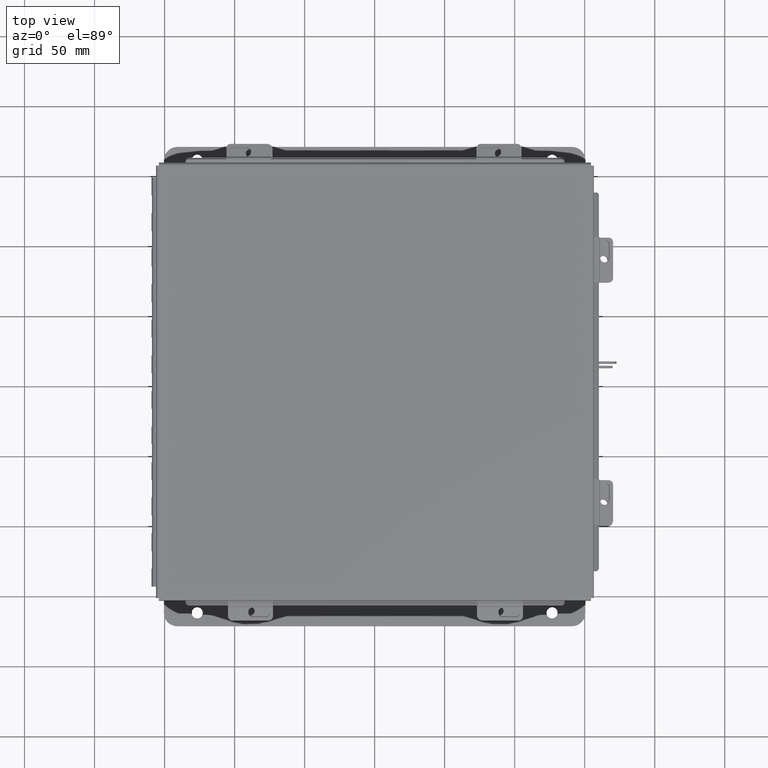
[diagram: clean part render]
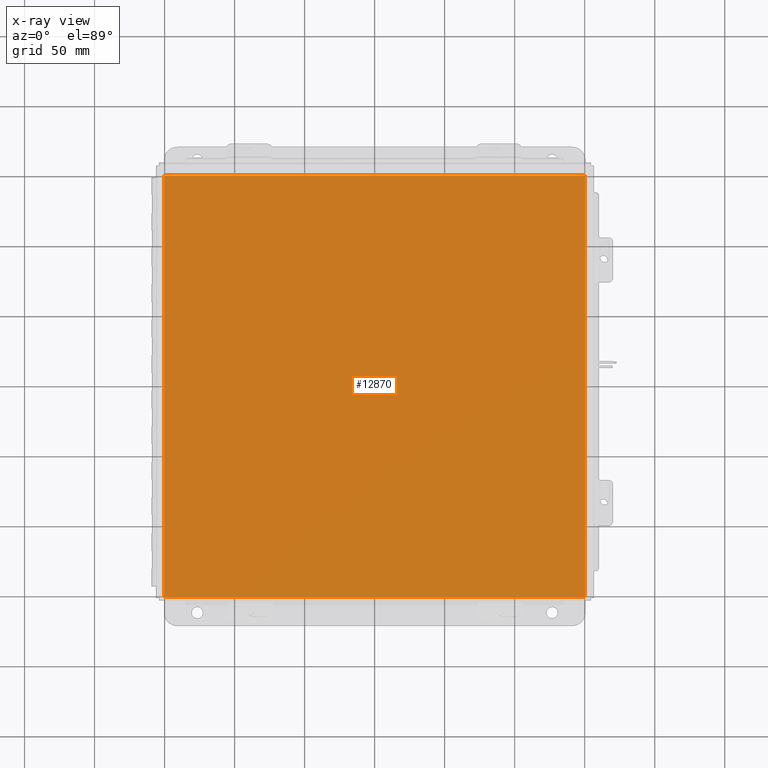
[diagram: x-ray — body ghosted, one internal face saturated and labeled with its STEP entity id]
A machine part, top view, then the same camera in x-ray: the body is ghosted and one INTERNAL B-rep face — a face not visible from any outside direction — is saturated and labeled: STEP entity #12870.
In plain terms, the highlighted planar face has unit normal (0, 0, -1).
Its self-contained STEP definition (entity closure, byte-faithful):
#443 = DIRECTION ( 'NONE',  ( -1.000000000000000000, -0.0000000000000000000, -0.0000000000000000000 ) ) ;
#1234 = DIRECTION ( 'NONE',  ( 1.000000000000000000, 0.0000000000000000000, 0.0000000000000000000 ) ) ;
#1493 = EDGE_CURVE ( 'NONE', #7293, #17021, #9686, .T. ) ;
#1653 = AXIS2_PLACEMENT_3D ( 'NONE', #5184, #2482, #12134 ) ;
#1910 = VECTOR ( 'NONE', #12462, 39.37007874015748100 ) ;
#2482 = DIRECTION ( 'NONE',  ( 0.0000000000000000000, 0.0000000000000000000, -1.000000000000000000 ) ) ;
#2789 = CARTESIAN_POINT ( 'NONE',  ( 5.912300000000002800, -5.925300000000000000, 4.268512490100411300E-017 ) ) ;
#3298 = VERTEX_POINT ( 'NONE', #16602 ) ;
#3703 = VECTOR ( 'NONE', #17709, 39.37007874015748100 ) ;
#3911 = VECTOR ( 'NONE', #1234, 39.37007874015748100 ) ;
#3975 = EDGE_CURVE ( 'NONE', #14115, #3298, #8245, .T. ) ;
#4246 = EDGE_CURVE ( 'NONE', #14115, #17021, #7585, .T. ) ;
#5184 = CARTESIAN_POINT ( 'NONE',  ( 0.0000000000000000000, 0.0000000000000000000, 0.0000000000000000000 ) ) ;
#5944 = CARTESIAN_POINT ( 'NONE',  ( -5.999999999999998200, -5.925300000000000000, 0.0000000000000000000 ) ) ;
#6808 = FACE_OUTER_BOUND ( 'NONE', #17127, .T. ) ;
#7293 = VERTEX_POINT ( 'NONE', #17259 ) ;
#7327 = CARTESIAN_POINT ( 'NONE',  ( -5.999999999999998200, 5.925300000000000000, 0.0000000000000000000 ) ) ;
#7585 = LINE ( 'NONE', #5944, #3911 ) ;
#7964 = PLANE ( 'NONE',  #1653 ) ;
#8004 = VECTOR ( 'NONE', #443, 39.37007874015748100 ) ;
#8093 = ORIENTED_EDGE ( 'NONE', *, *, #1493, .F. ) ;
#8245 = LINE ( 'NONE', #9734, #3703 ) ;
#8448 = CARTESIAN_POINT ( 'NONE',  ( 5.912300000000002800, 5.925300000000000000, 4.268512490100411300E-017 ) ) ;
#9402 = ORIENTED_EDGE ( 'NONE', *, *, #3975, .F. ) ;
#9686 = LINE ( 'NONE', #8448, #1910 ) ;
#9734 = CARTESIAN_POINT ( 'NONE',  ( -5.912299999999998300, -5.925300000000000000, 4.268512490100411300E-017 ) ) ;
#10335 = EDGE_CURVE ( 'NONE', #7293, #3298, #15360, .T. ) ;
#12134 = DIRECTION ( 'NONE',  ( -1.000000000000000000, 0.0000000000000000000, -0.0000000000000000000 ) ) ;
#12225 = ORIENTED_EDGE ( 'NONE', *, *, #10335, .T. ) ;
#12305 = CARTESIAN_POINT ( 'NONE',  ( -5.912299999999998300, -5.925299999999999100, 4.268512490100411300E-017 ) ) ;
#12462 = DIRECTION ( 'NONE',  ( -0.0000000000000000000, -1.000000000000000000, -0.0000000000000000000 ) ) ;
#12870 = ADVANCED_FACE ( 'NONE', ( #6808 ), #7964, .F. ) ;
#14115 = VERTEX_POINT ( 'NONE', #12305 ) ;
#14375 = ORIENTED_EDGE ( 'NONE', *, *, #4246, .T. ) ;
#15360 = LINE ( 'NONE', #7327, #8004 ) ;
#16602 = CARTESIAN_POINT ( 'NONE',  ( -5.912299999999998300, 5.925300000000000000, 4.268512490100411300E-017 ) ) ;
#17021 = VERTEX_POINT ( 'NONE', #2789 ) ;
#17127 = EDGE_LOOP ( 'NONE', ( #8093, #12225, #9402, #14375 ) ) ;
#17259 = CARTESIAN_POINT ( 'NONE',  ( 5.912300000000002800, 5.925299999999997300, 4.268512490100411300E-017 ) ) ;
#17709 = DIRECTION ( 'NONE',  ( -0.0000000000000000000, 1.000000000000000000, -0.0000000000000000000 ) ) ;